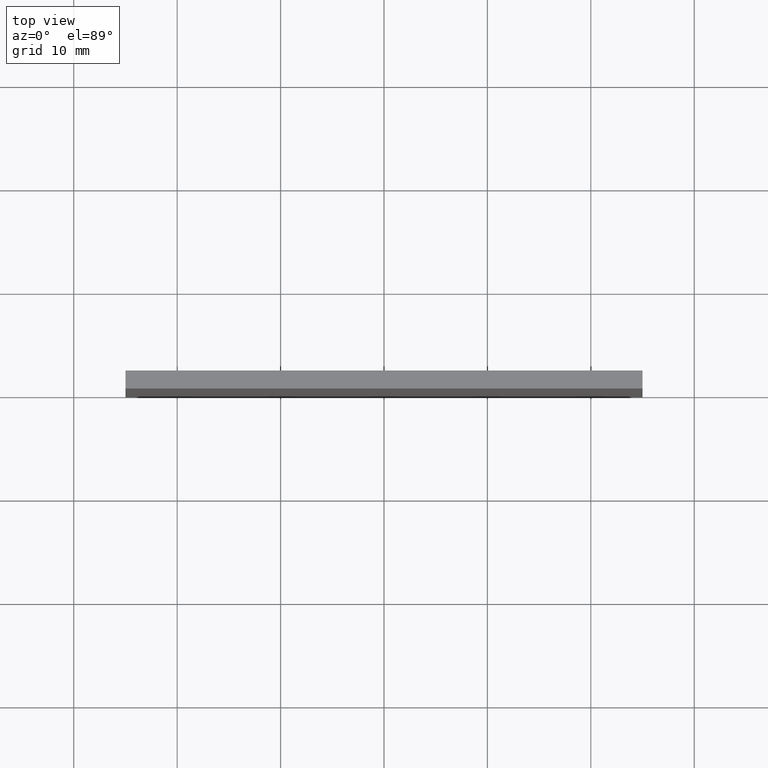
[diagram: clean part render]
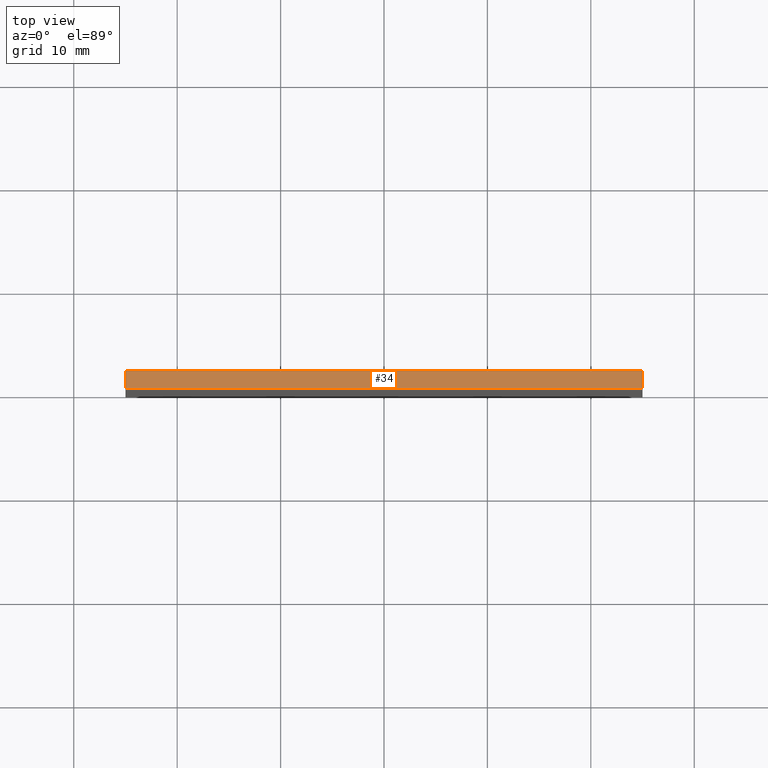
[diagram: same view with one face highlighted and labeled with its STEP entity id]
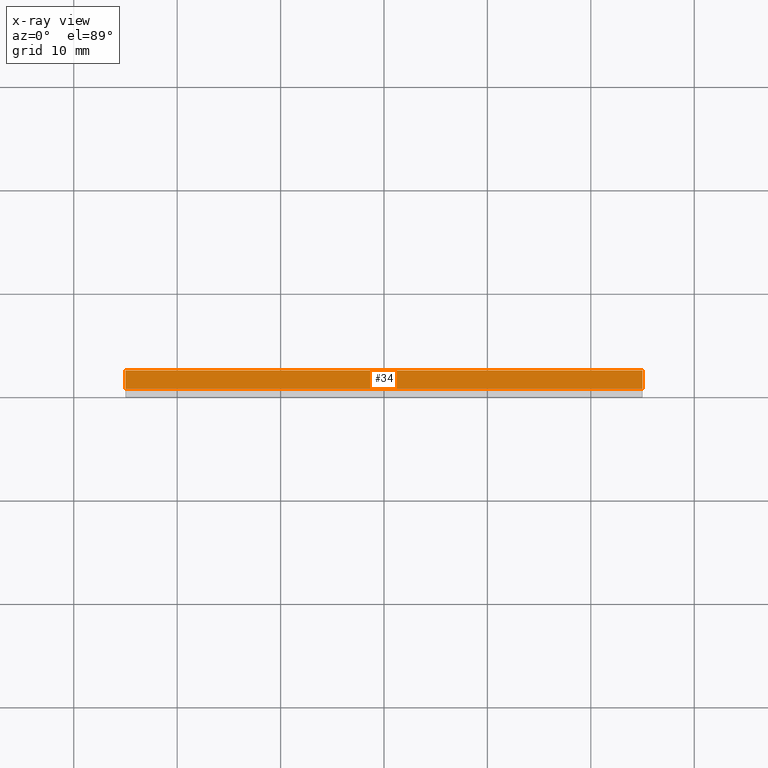
[diagram: x-ray of the same camera — body ghosted, the highlighted face saturated]
A machine part, top view. The second image highlights one B-rep face of the part: STEP entity #34.
The next image is the same camera in x-ray: the body ghosted, the highlighted face saturated — about 0% of this face is hidden behind the body in this view.
In plain terms, the highlighted planar face has unit normal (0, 0, -1).
Its self-contained STEP definition (entity closure, byte-faithful):
#1 = VECTOR ( 'NONE', #52, 1000.000000000000000 ) ;
#5 = VERTEX_POINT ( 'NONE', #94 ) ;
#16 = CARTESIAN_POINT ( 'NONE',  ( -25.00000000000000700, 1.740000000000000000, 25.00000000000000000 ) ) ;
#21 = ORIENTED_EDGE ( 'NONE', *, *, #67, .F. ) ;
#22 = ORIENTED_EDGE ( 'NONE', *, *, #104, .T. ) ;
#33 = EDGE_LOOP ( 'NONE', ( #53, #194, #21, #22 ) ) ;
#34 = ADVANCED_FACE ( 'NONE', ( #91 ), #195, .F. ) ;
#45 = EDGE_CURVE ( 'NONE', #165, #185, #138, .T. ) ;
#46 = DIRECTION ( 'NONE',  ( -1.000000000000000000, 0.0000000000000000000, -0.0000000000000000000 ) ) ;
#47 = CARTESIAN_POINT ( 'NONE',  ( -25.00000000000000700, 0.0000000000000000000, 25.00000000000000000 ) ) ;
#52 = DIRECTION ( 'NONE',  ( 1.000000000000000000, 0.0000000000000000000, 0.0000000000000000000 ) ) ;
#53 = ORIENTED_EDGE ( 'NONE', *, *, #80, .T. ) ;
#67 = EDGE_CURVE ( 'NONE', #5, #165, #134, .T. ) ;
#80 = EDGE_CURVE ( 'NONE', #86, #185, #126, .T. ) ;
#84 = CARTESIAN_POINT ( 'NONE',  ( 24.99999999999999300, 1.740000000000000000, 25.00000000000000000 ) ) ;
#86 = VERTEX_POINT ( 'NONE', #47 ) ;
#91 = FACE_OUTER_BOUND ( 'NONE', #33, .T. ) ;
#94 = CARTESIAN_POINT ( 'NONE',  ( -25.00000000000000700, 1.740000000000000000, 25.00000000000000000 ) ) ;
#103 = DIRECTION ( 'NONE',  ( 0.0000000000000000000, 0.0000000000000000000, -1.000000000000000000 ) ) ;
#104 = EDGE_CURVE ( 'NONE', #5, #86, #151, .T. ) ;
#105 = CARTESIAN_POINT ( 'NONE',  ( 24.99999999999999300, 0.0000000000000000000, 25.00000000000000000 ) ) ;
#108 = CARTESIAN_POINT ( 'NONE',  ( -25.00000000000000700, 1.740000000000000000, 25.00000000000000000 ) ) ;
#112 = DIRECTION ( 'NONE',  ( 1.000000000000000000, 0.0000000000000000000, 0.0000000000000000000 ) ) ;
#123 = CARTESIAN_POINT ( 'NONE',  ( -25.00000000000000700, 1.740000000000000000, 25.00000000000000000 ) ) ;
#126 = LINE ( 'NONE', #127, #168 ) ;
#127 = CARTESIAN_POINT ( 'NONE',  ( -25.00000000000000700, 0.0000000000000000000, 25.00000000000000000 ) ) ;
#129 = DIRECTION ( 'NONE',  ( -0.0000000000000000000, -1.000000000000000000, -0.0000000000000000000 ) ) ;
#134 = LINE ( 'NONE', #16, #1 ) ;
#138 = LINE ( 'NONE', #84, #173 ) ;
#144 = AXIS2_PLACEMENT_3D ( 'NONE', #123, #103, #46 ) ;
#151 = LINE ( 'NONE', #108, #164 ) ;
#164 = VECTOR ( 'NONE', #129, 1000.000000000000000 ) ;
#165 = VERTEX_POINT ( 'NONE', #177 ) ;
#168 = VECTOR ( 'NONE', #112, 1000.000000000000000 ) ;
#173 = VECTOR ( 'NONE', #184, 1000.000000000000000 ) ;
#177 = CARTESIAN_POINT ( 'NONE',  ( 24.99999999999999300, 1.740000000000000000, 25.00000000000000000 ) ) ;
#184 = DIRECTION ( 'NONE',  ( -0.0000000000000000000, -1.000000000000000000, -0.0000000000000000000 ) ) ;
#185 = VERTEX_POINT ( 'NONE', #105 ) ;
#194 = ORIENTED_EDGE ( 'NONE', *, *, #45, .F. ) ;
#195 = PLANE ( 'NONE',  #144 ) ;